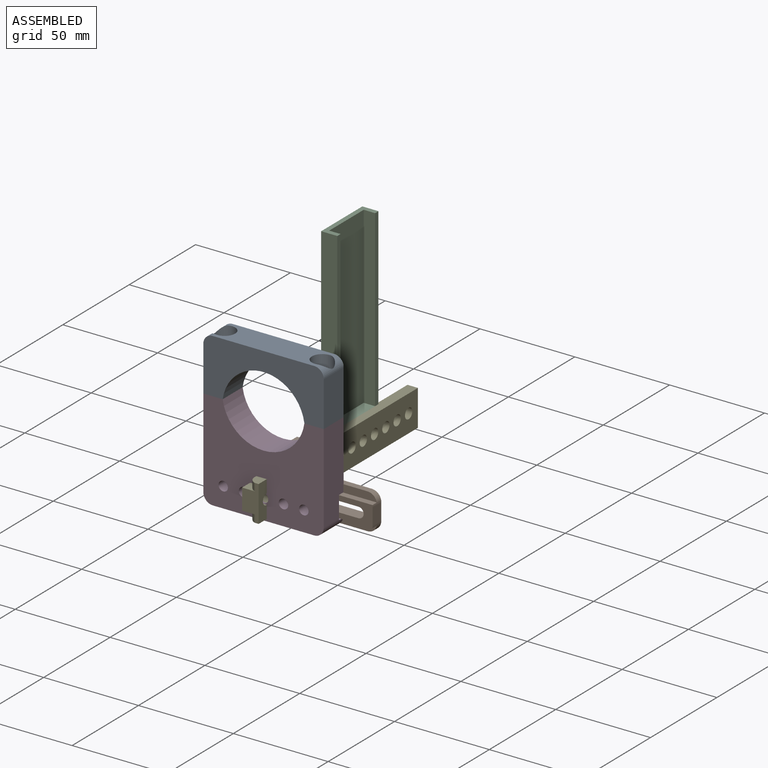
[diagram: assembled view]
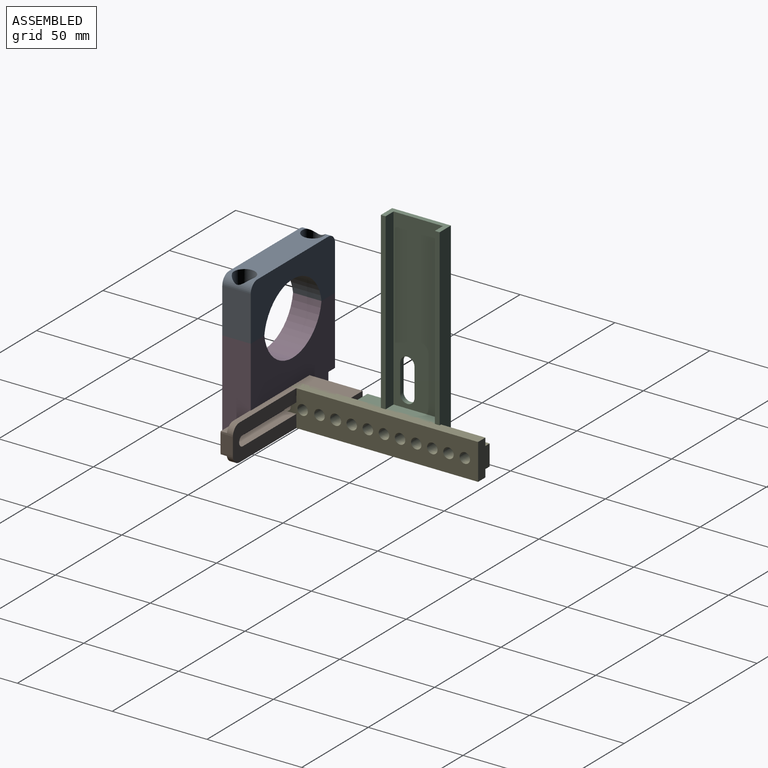
[diagram: assembled view, second angle]
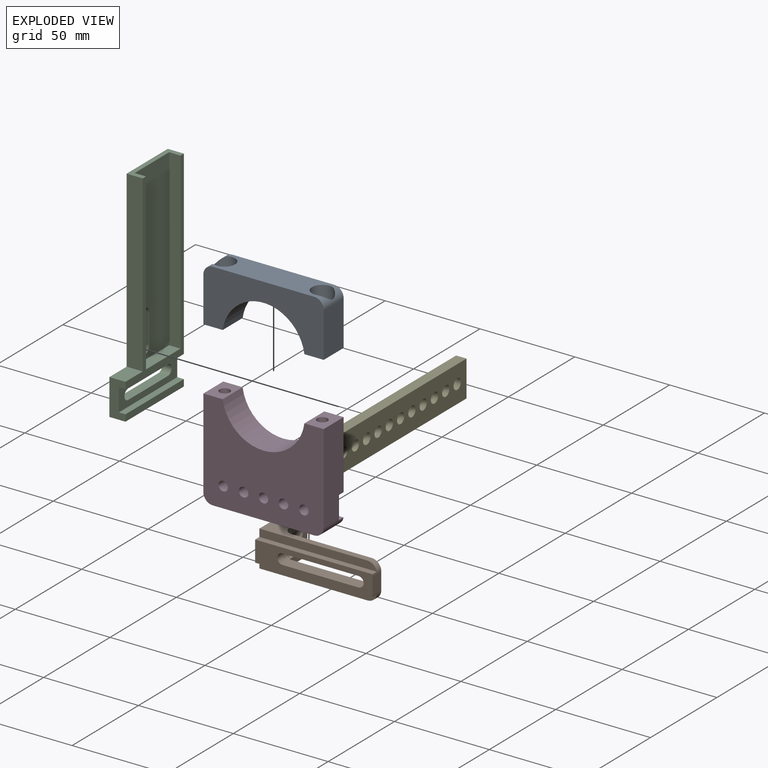
[diagram: exploded view]
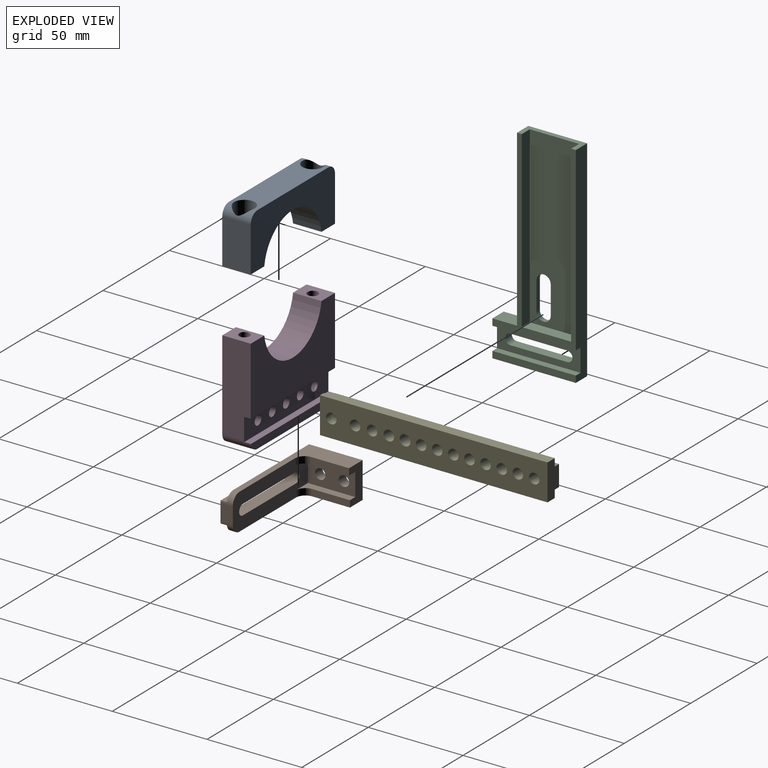
[diagram: exploded view, second angle]
ASSEMBLY  parts=5 mates=3
PART A: 16 faces, bbox 28.8x63.5x15 mm
  f0: cylinder r=5mm len=15mm, axis (0,0,1), area 75.5mm2, adj f1,f3,f4,f7,f8
  f1: plane 53.5x15mm, normal (1,0,0), area 685.6mm2, adj f0,f2,f3,f4,f8,f11
  f2: cylinder r=5mm len=15mm, axis (0,0,1), area 75.5mm2, adj f1,f3,f4,f6,f11
  f3: plane 63.5x28.75mm, normal (0,0,1), area 1201.9mm2, adj f0,f1,f2,f5,f6,f7,f14,f15
  f4: plane 63.5x28.75mm, normal (0,0,-1), area 1201.9mm2, adj f0,f1,f2,f5,f6,f7,f14,f15
  f5: cylinder r=21.75mm len=43.08mm, axis (0,0,-1), area 934.7mm2, adj f3,f4,f14,f15
  f6: plane 23.75x15mm, normal (0,1,0), area 356.2mm2, adj f2,f3,f4,f15
  f7: plane 23.75x15mm, normal (0,-1,0), area 356.2mm2, adj f0,f3,f4,f14
  f8: cylinder r=5.5mm len=13mm, axis (1,0,0), area 429.5mm2, adj f0,f1,f9
  f9: plane 11x11mm, normal (1,0,0), area 71.3mm2, adj f8,f10
  f10: cylinder r=2.75mm len=15.75mm, axis (1,0,0), area 272.1mm2, adj f9,f14
  f11: cylinder r=5.5mm len=13mm, axis (1,0,0), area 429.5mm2, adj f1,f2,f12
  f12: plane 11x11mm, normal (1,0,0), area 71.3mm2, adj f11,f13
  f13: cylinder r=2.75mm len=15.75mm, axis (1,0,0), area 272.1mm2, adj f12,f15
  f14: plane 15x10.21mm, normal (-1,0,0), area 129.4mm2, adj f3,f4,f5,f7,f10
  f15: plane 15x10.21mm, normal (-1,0,0), area 129.4mm2, adj f3,f4,f5,f6,f13
PART B: 26 faces, bbox 19x62x31.5 mm
  f0: plane 61.9x4mm, normal (0,0,1), area 242.7mm2, adj f9,f10,f21,f25
  f1: plane 9x6.5mm, normal (0,-1,0), area 58.5mm2, adj f7,f12,f21,f22
  f2: cylinder r=2.75mm len=6.5mm, axis (0,0,-1), area 56.6mm2, adj f3,f5,f7,f12
  f3: plane 39.93x6.5mm, normal (1,0,0), area 259.5mm2, adj f2,f4,f7,f12
  f4: cylinder r=2.75mm len=6.5mm, axis (0,0,-1), area 56.2mm2, adj f3,f5,f7,f12
  f5: plane 40x6.5mm, normal (-1,0,0), area 260mm2, adj f2,f4,f7,f12
  f6: plane 61.9x4mm, normal (0,0,1), area 242.7mm2, adj f8,f11,f22,f25
  f7: plane 56.5x19mm, normal (0,0,-1), area 753.7mm2, adj f1,f2,f3,f4,f5,f8,f9,f15
  f8: plane 57x28.25mm, normal (1,0,0), area 445mm2, adj f6,f7,f14,f18,f19,f22,f25
  f9: plane 57x28.25mm, normal (-1,0,0), area 428.1mm2, adj f0,f7,f13,f18,f20,f21,f25
  f10: plane 61.9x3.25mm, normal (-1,0,0), area 201.2mm2, adj f0,f12,f21,f25
  f11: plane 61.9x3.25mm, normal (1,0,0), area 201.2mm2, adj f6,f12,f22,f25
  f12: plane 62x11mm, normal (0,0,1), area 438.2mm2, adj f1,f2,f3,f4,f5,f10,f11,f21
  f13: plane 20x3.5mm, normal (0,-1,0), area 70mm2, adj f9,f17,f18,f20
  f14: plane 20x3.5mm, normal (0,-1,0), area 70mm2, adj f8,f15,f18,f19
  f15: plane 25x9.68mm, normal (-1,0,0), area 122.2mm2, adj f7,f14,f16,f18,f19
  f16: plane 25x12mm, normal (0,-1,0), area 252.5mm2, adj f7,f15,f17,f18,f23,f24
  f17: plane 25x9mm, normal (1,0,0), area 105.4mm2, adj f7,f13,f16,f18,f20
  f18: plane 19x10.18mm, normal (0,0,-1), area 134.9mm2, adj f8,f9,f13,f14,f15,f16,f17,f25
  f19: cylinder r=5mm len=5mm, axis (1,0,0), area 27.5mm2, adj f7,f8,f14,f15
  f20: cylinder r=5mm len=5mm, axis (1,0,0), area 27.5mm2, adj f7,f9,f13,f17
  f21: cylinder r=5mm len=6.5mm, axis (0,0,1), area 28.8mm2, adj f0,f1,f7,f9,f10,f12
  f22: cylinder r=5mm len=6.5mm, axis (0,0,1), area 28.8mm2, adj f1,f6,f7,f8,f11,f12
  f23: cylinder r=2.75mm len=5.5mm, axis (0,-1,0), area 95mm2, adj f16,f25
  f24: cylinder r=2.75mm len=5.5mm, axis (0,-1,0), area 95mm2, adj f16,f25
  f25: plane 31.5x19mm, normal (0,1,0), area 525mm2, adj f0,f6,f8,f9,f10,f11,f12,f18
PART C: 24 faces, bbox 111x44x8.5 mm
  f0: plane 111x44mm, normal (0,0,1), area 3342.6mm2, adj f4,f5,f6,f7,f8,f9,f10,f11
  f1: plane 92x26mm, normal (0,0,-1), area 2235.3mm2, adj f2,f16,f18,f19,f20,f21,f22,f23
  f2: plane 26x6mm, normal (1,0,0), area 156mm2, adj f1,f15,f16,f18
  f3: plane 44x12mm, normal (0,0,-1), area 339.2mm2, adj f4,f5,f6,f8,f10,f11,f12,f14
  f4: cylinder r=2.75mm len=5.5mm, axis (0,0,-1), area 43.2mm2, adj f0,f3,f5,f11
  f5: plane 30x5mm, normal (1,0,0), area 150mm2, adj f0,f3,f4,f6
  f6: cylinder r=2.75mm len=5.5mm, axis (0,0,-1), area 43.2mm2, adj f0,f3,f5,f11
  f7: plane 44x8.5mm, normal (-1,0,0), area 374mm2, adj f0,f8,f10,f13
  f8: plane 19x8.5mm, normal (0,-1,0), area 119.5mm2, adj f0,f3,f7,f9,f12,f13,f14,f15
  f9: plane 13x8.5mm, normal (1,0,0), area 110.5mm2, adj f0,f8,f15,f17
  f10: plane 111x8.5mm, normal (0,1,0), area 901.5mm2, adj f0,f3,f7,f12,f13,f14,f15,f19
  f11: plane 30x5mm, normal (-1,0,0), area 150mm2, adj f0,f3,f4,f6
  f12: plane 44x3.5mm, normal (1,0,0), area 154mm2, adj f3,f8,f10,f13
  f13: plane 44x3.5mm, normal (0,0,-1), area 154mm2, adj f7,f8,f10,f12
  f14: plane 44x3.5mm, normal (-1,0,0), area 154mm2, adj f3,f8,f10,f15
  f15: plane 95.5x44mm, normal (0,0,-1), area 614mm2, adj f2,f8,f9,f10,f14,f16,f17,f18
  f16: plane 92x6mm, normal (0,-1,0), area 552mm2, adj f1,f2,f15,f19
  f17: plane 92x8.5mm, normal (0,-1,0), area 782mm2, adj f0,f9,f15,f19
  f18: plane 92x6mm, normal (0,1,0), area 552mm2, adj f1,f2,f15,f19
  f19: plane 31x8.5mm, normal (1,0,0), area 107.5mm2, adj f0,f1,f10,f15,f16,f17,f18
  f20: plane 14.88x2.5mm, normal (0,1,0), area 37.2mm2, adj f0,f1,f21,f23
  f21: cylinder r=3.75mm len=7.5mm, axis (0,0,-1), area 29.8mm2, adj f0,f1,f20,f22
  f22: plane 14.98x2.5mm, normal (0,-1,0), area 37.4mm2, adj f0,f1,f21,f23
  f23: cylinder r=3.75mm len=7.5mm, axis (0,0,-1), area 29.5mm2, adj f0,f1,f20,f22
PART D: 23 faces, bbox 52x63.5x15 mm
  f0: plane 47x15mm, normal (0,1,0), area 665.6mm2, adj f1,f3,f8,f9,f10,f18
  f1: plane 63.5x35.75mm, normal (0,0,-1), area 1657.1mm2, adj f0,f2,f4,f8,f17,f18
  f2: cylinder r=21.75mm len=43.08mm, axis (0,0,-1), area 934.7mm2, adj f1,f3,f17,f18
  f3: plane 63.5x52mm, normal (0,0,1), area 2580.1mm2, adj f0,f2,f4,f5,f10,f11,f12,f13
  f4: plane 47x15mm, normal (0,-1,0), area 665.6mm2, adj f1,f3,f8,f9,f11,f17
  f5: plane 53.5x15mm, normal (-1,0,0), area 802.5mm2, adj f3,f6,f10,f11
  f6: plane 63.35x4.15mm, normal (0,0,-1), area 252.8mm2, adj f5,f7,f10,f11
  f7: plane 63.35x3.5mm, normal (1,0,0), area 221.7mm2, adj f6,f9,f10,f11
  f8: plane 63.5x3.5mm, normal (-1,0,0), area 222.2mm2, adj f0,f1,f4,f9
  f9: plane 63.5x12.1mm, normal (0,0,-1), area 670.1mm2, adj f0,f4,f7,f8,f10,f11,f12,f13
  f10: cylinder r=5mm len=15mm, axis (0,0,-1), area 114.8mm2, adj f0,f3,f5,f6,f7,f9
  f11: cylinder r=5mm len=15mm, axis (0,0,-1), area 114.8mm2, adj f3,f4,f5,f6,f7,f9
  f12: cylinder r=2.5mm len=11.5mm, axis (0,0,-1), area 180.6mm2, adj f3,f9
  f13: cylinder r=2.5mm len=11.5mm, axis (0,0,-1), area 180.6mm2, adj f3,f9
  f14: cylinder r=2.5mm len=11.5mm, axis (0,0,-1), area 180.6mm2, adj f3,f9
  f15: cylinder r=2.5mm len=11.5mm, axis (0,0,-1), area 180.6mm2, adj f3,f9
  f16: cylinder r=2.5mm len=11.5mm, axis (0,0,-1), area 180.6mm2, adj f3,f9
  f17: plane 15x10.21mm, normal (1,0,0), area 129.4mm2, adj f1,f2,f3,f4,f20
  f18: plane 15x10.21mm, normal (1,0,0), area 129.4mm2, adj f0,f1,f2,f3,f22
  f19: cone r=0mm half-angle=59deg, axis (1,0,0), area 27.7mm2, adj f20
  f20: cylinder r=2.75mm len=25.25mm, axis (1,0,0), area 436.3mm2, adj f17,f19
  f21: cone r=0mm half-angle=59deg, axis (1,0,0), area 27.7mm2, adj f22
  f22: cylinder r=2.75mm len=25.25mm, axis (1,0,0), area 436.3mm2, adj f18,f21
PART E: 25 faces, bbox 19x120x8.7 mm
  f0: plane 19x8.7mm, normal (0,1,0), area 139.7mm2, adj f15,f16,f17,f18,f19,f20,f21,f24
  f1: plane 19x8.7mm, normal (0,-1,0), area 111.7mm2, adj f15,f17,f18,f20,f21,f22,f23,f24
  f2: cylinder r=2.75mm len=8.7mm, axis (0,0,-1), area 150.3mm2, adj f21,f24
  f3: cylinder r=2.75mm len=8.7mm, axis (0,0,-1), area 150.3mm2, adj f21,f24
  f4: cylinder r=2.75mm len=8.7mm, axis (0,0,-1), area 150.3mm2, adj f21,f24
  f5: cylinder r=2.75mm len=8.7mm, axis (0,0,-1), area 150.3mm2, adj f21,f24
  f6: cylinder r=2.75mm len=8.7mm, axis (0,0,-1), area 150.3mm2, adj f21,f24
  f7: cylinder r=2.75mm len=8.7mm, axis (0,0,-1), area 150.3mm2, adj f21,f24
  f8: cylinder r=2.75mm len=8.7mm, axis (0,0,-1), area 150.3mm2, adj f21,f24
  f9: cylinder r=2.75mm len=8.7mm, axis (0,0,-1), area 150.3mm2, adj f21,f24
  f10: cylinder r=2.88mm len=8.7mm, axis (0,0,-1), area 157.2mm2, adj f21,f24
  f11: cylinder r=2.75mm len=8.7mm, axis (0,0,-1), area 150.3mm2, adj f21,f24
  f12: cylinder r=2.75mm len=8.7mm, axis (0,0,-1), area 150.3mm2, adj f21,f24
  f13: cylinder r=2.75mm len=8.7mm, axis (0,0,-1), area 150.3mm2, adj f21,f24
  f14: cylinder r=2.75mm len=8.7mm, axis (0,0,-1), area 150.3mm2, adj f21,f24
  f15: plane 120x5.5mm, normal (-1,0,0), area 655.6mm2, adj f0,f1,f16,f22,f24
  f16: plane 115.23x4mm, normal (0,0,1), area 460.9mm2, adj f0,f15,f17,f22
  f17: plane 120x6.7mm, normal (-1,0,0), area 388.4mm2, adj f0,f1,f16,f21,f22
  f18: plane 120x5.5mm, normal (1,0,0), area 655.6mm2, adj f0,f1,f19,f23,f24
  f19: plane 115.23x4mm, normal (0,0,1), area 460.9mm2, adj f0,f18,f20,f23
  f20: plane 120x6.7mm, normal (1,0,0), area 388.4mm2, adj f0,f1,f19,f21,f23
  f21: plane 120x11mm, normal (0,0,1), area 1008.9mm2, adj f0,f1,f2,f3,f4,f5,f6,f7
  f22: cylinder r=5mm len=4.77mm, axis (1,0,0), area 25.3mm2, adj f1,f15,f16,f17
  f23: cylinder r=5mm len=4.77mm, axis (1,0,0), area 25.3mm2, adj f1,f18,f19,f20
  f24: plane 120x19mm, normal (0,0,-1), area 1968.9mm2, adj f0,f1,f2,f3,f4,f5,f6,f7
PLACE A rot(axis=(0.58,-0.58,0.58),120deg) t=(-71.65,-159.9,77.14)mm
PLACE B rot(axis=(0.58,-0.58,0.58),120deg) t=(-59.27,-156.9,210.08)mm
PLACE C rot(axis=(0,-1,0),90deg) t=(-77.89,-84.44,462.85)mm
PLACE D rot(axis=(0.58,-0.58,0.58),120deg) t=(-71.65,-159.9,83.14)mm fixed
PLACE E rot(axis=(0,-1,0),90deg) t=(-71.95,-93.67,292.22)mm
MATE slider C.f3 <-> E.f21  axis (1,0,0) through (-77.89,-106.44,38.76)mm
MATE fastened D.f17 <-> A.f14  axis (0,0,1) through (-44.84,-167.4,80.14)mm
MATE fastened E.f21 <-> B.f16  axis (-1,0,0) through (-78.65,-121.44,38.76)mm
